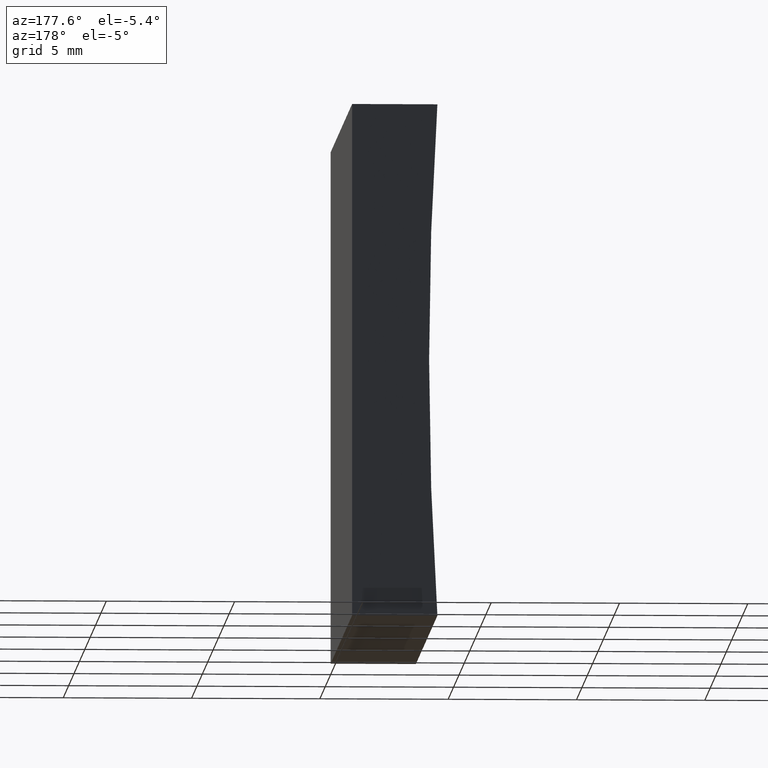
[diagram: clean part render]
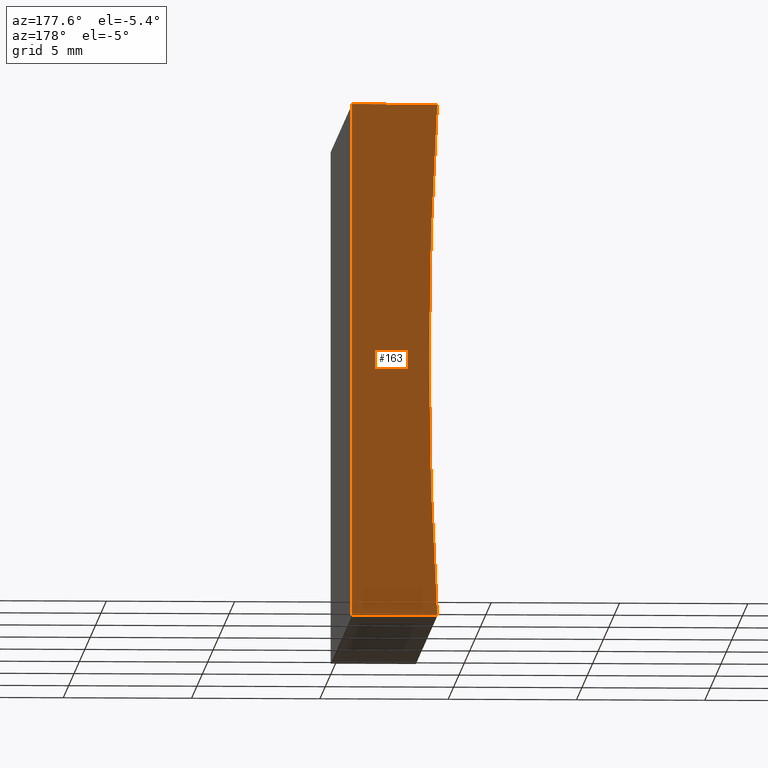
[diagram: same view with one face highlighted and labeled with its STEP entity id]
A machine part, auxiliary view. The second image highlights one B-rep face of the part: STEP entity #163.
In plain terms, the highlighted planar face has unit normal (0, 1, 0).
Its self-contained STEP definition (entity closure, byte-faithful):
#1 = LINE ( 'NONE', #199, #136 ) ;
#5 = CARTESIAN_POINT ( 'NONE',  ( 1.224646799147353300E-015, 20.00000000000000000, 20.00000000000000000 ) ) ;
#10 = EDGE_CURVE ( 'NONE', #130, #58, #1, .T. ) ;
#17 = CARTESIAN_POINT ( 'NONE',  ( -158.0999999999999900, 20.00000000000000000, 10.00000000000002300 ) ) ;
#21 = LINE ( 'NONE', #137, #97 ) ;
#22 = DIRECTION ( 'NONE',  ( 0.0000000000000000000, 1.000000000000000000, 0.0000000000000000000 ) ) ;
#33 = DIRECTION ( 'NONE',  ( 1.000000000000000000, -0.0000000000000000000, -0.0000000000000000000 ) ) ;
#37 = LINE ( 'NONE', #129, #133 ) ;
#41 = EDGE_CURVE ( 'NONE', #172, #130, #44, .T. ) ;
#44 = CIRCLE ( 'NONE', #203, 155.1000000000000200 ) ;
#52 = ORIENTED_EDGE ( 'NONE', *, *, #41, .T. ) ;
#55 = CARTESIAN_POINT ( 'NONE',  ( -3.322708383949296800, 20.00000000000000000, 1.734723475976807100E-015 ) ) ;
#58 = VERTEX_POINT ( 'NONE', #5 ) ;
#65 = DIRECTION ( 'NONE',  ( -0.0000000000000000000, -1.000000000000000000, -0.0000000000000000000 ) ) ;
#74 = CARTESIAN_POINT ( 'NONE',  ( -158.0999999999999900, 20.00000000000000000, 10.00000000000002300 ) ) ;
#76 = DIRECTION ( 'NONE',  ( 0.0000000000000000000, 0.0000000000000000000, 1.000000000000000000 ) ) ;
#86 = ORIENTED_EDGE ( 'NONE', *, *, #180, .T. ) ;
#87 = DIRECTION ( 'NONE',  ( -1.000000000000000000, 0.0000000000000000000, 0.0000000000000000000 ) ) ;
#97 = VECTOR ( 'NONE', #177, 1000.000000000000000 ) ;
#103 = CARTESIAN_POINT ( 'NONE',  ( -3.322708383949298600, 20.00000000000000000, 20.00000000000000000 ) ) ;
#112 = FACE_OUTER_BOUND ( 'NONE', #167, .T. ) ;
#114 = VERTEX_POINT ( 'NONE', #157 ) ;
#129 = CARTESIAN_POINT ( 'NONE',  ( 0.0000000000000000000, 20.00000000000000000, 0.0000000000000000000 ) ) ;
#130 = VERTEX_POINT ( 'NONE', #103 ) ;
#133 = VECTOR ( 'NONE', #87, 1000.000000000000000 ) ;
#136 = VECTOR ( 'NONE', #33, 1000.000000000000000 ) ;
#137 = CARTESIAN_POINT ( 'NONE',  ( 0.0000000000000000000, 20.00000000000000000, 0.0000000000000000000 ) ) ;
#145 = ORIENTED_EDGE ( 'NONE', *, *, #174, .T. ) ;
#153 = PLANE ( 'NONE',  #161 ) ;
#154 = DIRECTION ( 'NONE',  ( 0.0000000000000000000, -0.0000000000000000000, 1.000000000000000000 ) ) ;
#157 = CARTESIAN_POINT ( 'NONE',  ( 0.0000000000000000000, 20.00000000000000000, 0.0000000000000000000 ) ) ;
#161 = AXIS2_PLACEMENT_3D ( 'NONE', #17, #22, #154 ) ;
#163 = ADVANCED_FACE ( 'NONE', ( #112 ), #153, .T. ) ;
#166 = ORIENTED_EDGE ( 'NONE', *, *, #10, .T. ) ;
#167 = EDGE_LOOP ( 'NONE', ( #86, #52, #166, #145 ) ) ;
#172 = VERTEX_POINT ( 'NONE', #55 ) ;
#174 = EDGE_CURVE ( 'NONE', #58, #114, #21, .T. ) ;
#177 = DIRECTION ( 'NONE',  ( -6.123233995736766000E-017, -0.0000000000000000000, -1.000000000000000000 ) ) ;
#180 = EDGE_CURVE ( 'NONE', #114, #172, #37, .T. ) ;
#199 = CARTESIAN_POINT ( 'NONE',  ( 1.224646799147353300E-015, 20.00000000000000000, 20.00000000000000000 ) ) ;
#203 = AXIS2_PLACEMENT_3D ( 'NONE', #74, #65, #76 ) ;